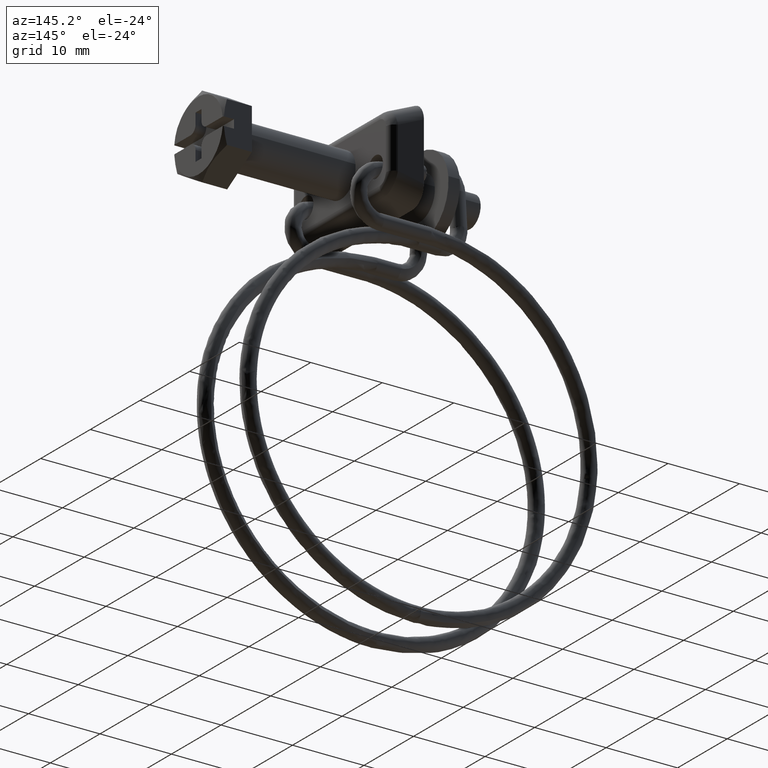
[diagram: clean part render]
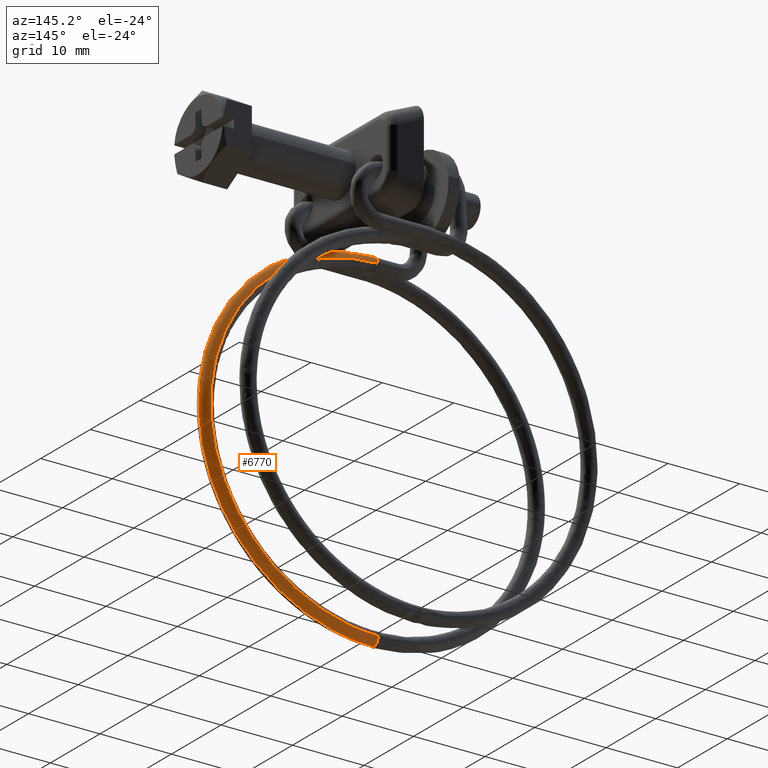
[diagram: same view with one face highlighted and labeled with its STEP entity id]
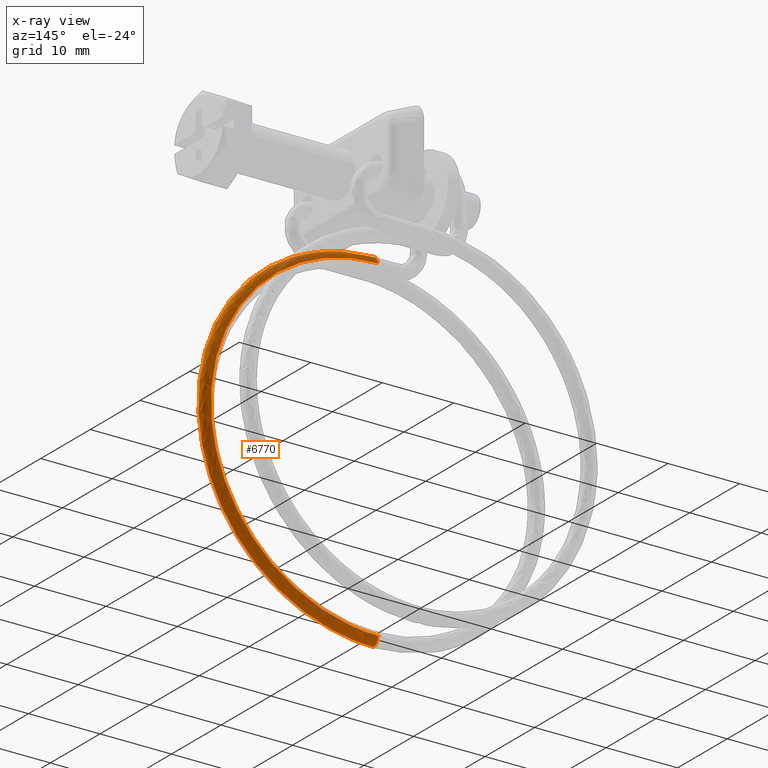
[diagram: x-ray of the same camera — body ghosted, the highlighted face saturated]
A machine part, auxiliary view. The second image highlights one B-rep face of the part: STEP entity #6770.
The next image is the same camera in x-ray: the body ghosted, the highlighted face saturated — about 5% of this face is hidden behind the body in this view.
In plain terms, the highlighted face is a freeform B-spline surface patch.
Its self-contained STEP definition (entity closure, byte-faithful):
#4848=CARTESIAN_POINT('',(-23.350463088142170,-4.287435667147010,-6.850282625755185));
#4849=VERTEX_POINT('',#4848);
#4857=CARTESIAN_POINT('',(-23.354802229962161,-3.302446797782970,-7.919926910837956));
#4858=VERTEX_POINT('',#4857);
#4859=CARTESIAN_POINT('',(-23.354802229962161,-3.302446797782970,-7.919926910837956));
#4860=CARTESIAN_POINT('',(-23.354708021398480,-3.300813736742344,-7.896721693741863));
#4861=CARTESIAN_POINT('',(-23.354613584110659,-3.299991762433371,-7.873459493848626));
#4862=CARTESIAN_POINT('',(-23.353987749752431,-3.299992578671924,-7.719296971577888));
#4863=CARTESIAN_POINT('',(-23.353456649161540,-3.326020721691589,-7.588449764524616));
#4864=CARTESIAN_POINT('',(-23.352475083886819,-3.426208779080070,-7.346580456395813));
#4865=CARTESIAN_POINT('',(-23.352025005407000,-3.500329273726535,-7.235653520564727));
#4866=CARTESIAN_POINT('',(-23.351274095476011,-3.685451278844230,-7.050534704200553));
#4867=CARTESIAN_POINT('',(-23.350973559475840,-3.796379951711530,-6.976415660016761));
#4868=CARTESIAN_POINT('',(-23.350574119310469,-4.034382657736766,-6.877833023538655));
#4869=CARTESIAN_POINT('',(-23.350469220131629,-4.160737249295240,-6.851893240888010));
#4870=CARTESIAN_POINT('',(-23.350463088142170,-4.287435667147010,-6.850282625755185));
#4871=B_SPLINE_CURVE_WITH_KNOTS('',3,(#4859,#4860,#4861,#4862,#4863,#4864,#4865,#4866,#4867,#4868,#4869,#4870),.UNSPECIFIED.,.F.,.U.,(4,2,2,2,2,4),(0.738892255999504,0.750000000000000,0.812500000000000,0.875000000000000,0.937500000000000,0.997999930342307),.UNSPECIFIED.);
#4872=EDGE_CURVE('',#4858,#4849,#4871,.T.);
#6628=CARTESIAN_POINT('',(-23.449999999929819,-3.302485887032724,-54.780271342080880));
#6629=VERTEX_POINT('',#6628);
#6630=CARTESIAN_POINT('',(-23.354802229962157,-3.302446797782970,-7.919926910837956));
#6631=CARTESIAN_POINT('',(0.275356767439989,-3.302446837827358,-8.015937642070787));
#6632=CARTESIAN_POINT('',(-0.021583205459904,-3.302466548304202,-31.644428117575227));
#6633=CARTESIAN_POINT('',(-0.312332065016226,-3.302485847823251,-54.780271337667571));
#6634=CARTESIAN_POINT('',(-23.449999999929823,-3.302485887032724,-54.780271342080887));
#6642=(BOUNDED_CURVE()B_SPLINE_CURVE(2,(#6630,#6631,#6632,#6633,#6634),.UNSPECIFIED.,.F.,.U.)B_SPLINE_CURVE_WITH_KNOTS((3,2,3),(-3.804256949641648,-2.0,-0.221563029389117),.UNSPECIFIED.)CURVE()GEOMETRIC_REPRESENTATION_ITEM()RATIONAL_B_SPLINE_CURVE((0.916624329588821,0.666478302782561,0.977505800795127,0.670929289366412,0.909579780183434))REPRESENTATION_ITEM(''));
#6643=EDGE_CURVE('',#4858,#6629,#6642,.T.);
#6680=CARTESIAN_POINT('',(-23.450016704788052,-4.287434460039799,-55.849920171865463));
#6681=VERTEX_POINT('',#6680);
#6689=CARTESIAN_POINT('',(-23.350463088142167,-4.287435667147010,-6.850282625755185));
#6690=CARTESIAN_POINT('',(1.358482793455375,-4.287435665910700,-6.950669580082859));
#6691=CARTESIAN_POINT('',(1.047986632482016,-4.287435057235282,-31.657867272768598));
#6692=CARTESIAN_POINT('',(0.743964105629792,-4.287434461250333,-55.849936670407061));
#6693=CARTESIAN_POINT('',(-23.450016704788059,-4.287434460039799,-55.849920171865463));
#6701=(BOUNDED_CURVE()B_SPLINE_CURVE(2,(#6689,#6690,#6691,#6692,#6693),.UNSPECIFIED.,.F.,.U.)B_SPLINE_CURVE_WITH_KNOTS((3,2,3),(-3.804257295398728,-2.0,-0.221562197034377),.UNSPECIFIED.)CURVE()GEOMETRIC_REPRESENTATION_ITEM()RATIONAL_B_SPLINE_CURVE((0.937717632689477,0.681815128500485,1.0,0.686368454626954,0.930511105747861))REPRESENTATION_ITEM(''));
#6702=EDGE_CURVE('',#4849,#6681,#6701,.T.);
#6711=CARTESIAN_POINT('',(-26.804133087881038,-4.294807898263949,-7.080669284422161));
#6712=CARTESIAN_POINT('',(1.405937588303184,-4.294807898263948,-3.181907976309245));
#6713=CARTESIAN_POINT('',(1.048079269500098,-4.294807898263948,-31.657869149140808));
#6714=CARTESIAN_POINT('',(0.697335984454505,-4.294807898263949,-59.567663729284838));
#6715=CARTESIAN_POINT('',(-26.931424510503682,-4.294807898263947,-55.601400012626577));
#6716=CARTESIAN_POINT('',(-26.804126755985671,-4.291127565899248,-7.080715099798336));
#6717=CARTESIAN_POINT('',(1.405890665538926,-4.291127565899247,-3.181961151723925));
#6718=CARTESIAN_POINT('',(1.048033022296820,-4.291127565899251,-31.657868567950739));
#6719=CARTESIAN_POINT('',(0.697290399380523,-4.291127565899249,-59.567610460293011));
#6720=CARTESIAN_POINT('',(-26.931417938308975,-4.291127565899247,-55.601354231103571));
#6721=CARTESIAN_POINT('',(-26.802400072180077,-3.287514915912833,-7.093208778775241));
#6722=CARTESIAN_POINT('',(1.393095006040030,-3.287514915912832,-3.196461885232121));
#6723=CARTESIAN_POINT('',(1.035421585709653,-3.287514915912832,-31.657710079622010));
#6724=CARTESIAN_POINT('',(0.684859522936422,-3.287514915912831,-59.553084208653694));
#6725=CARTESIAN_POINT('',(-26.929625725786341,-3.287514915912833,-55.588869783754326));
#6726=CARTESIAN_POINT('',(-26.665507566632957,-3.300080955796185,-8.083714980960105));
#6727=CARTESIAN_POINT('',(0.378647610830900,-3.300080955796183,-4.346088548655130));
#6728=CARTESIAN_POINT('',(0.035579491068003,-3.300080955796184,-31.645145031900341));
#6729=CARTESIAN_POINT('',(-0.300667657587121,-3.300080955796184,-58.401434452818968));
#6730=CARTESIAN_POINT('',(-26.787538065091553,-3.300080955796184,-54.599095470428324));
#6731=CARTESIAN_POINT('',(-26.661589765717810,-3.300440590111870,-8.112062815561281));
#6732=CARTESIAN_POINT('',(0.349614590232398,-3.300440590111868,-4.378990338099685));
#6733=CARTESIAN_POINT('',(0.006964467493521,-3.300440590111870,-31.644785425979872));
#6734=CARTESIAN_POINT('',(-0.328872994864985,-3.300440590111869,-58.368474763394666));
#6735=CARTESIAN_POINT('',(-26.783471581211533,-3.300440590111871,-54.570768582151636));
#6736=CARTESIAN_POINT('',(-26.656581493289647,-3.302997833448982,-8.148300919922686));
#6737=CARTESIAN_POINT('',(0.312500586811052,-3.302997833448982,-4.421049934409018));
#6738=CARTESIAN_POINT('',(-0.029615194593034,-3.302997833448984,-31.644325728191372));
#6739=CARTESIAN_POINT('',(-0.364928939532514,-3.302997833448982,-58.326341151361021));
#6740=CARTESIAN_POINT('',(-26.778273241751005,-3.302997833448983,-54.534557254265529));
#6741=CARTESIAN_POINT('',(-26.655475023482925,-3.303562801226102,-8.156306947730441));
#6742=CARTESIAN_POINT('',(0.304301047991775,-3.303562801226102,-4.430342095342086));
#6743=CARTESIAN_POINT('',(-0.037696682215634,-3.303562801226104,-31.644224167876803));
#6744=CARTESIAN_POINT('',(-0.372894723083557,-3.303562801226103,-58.317032638249572));
#6745=CARTESIAN_POINT('',(-26.777124780731619,-3.303562801226103,-54.526557142142643));
#6753=(BOUNDED_SURFACE()B_SPLINE_SURFACE(2,2,((#6711,#6716,#6721,#6726,#6731,#6736,#6741),(#6712,#6717,#6722,#6727,#6732,#6737,#6742),(#6713,#6718,#6723,#6728,#6733,#6738,#6743),(#6714,#6719,#6724,#6729,#6734,#6739,#6744),(#6715,#6720,#6725,#6730,#6735,#6740,#6745)),.UNSPECIFIED.,.F.,.F.,.U.)B_SPLINE_SURFACE_WITH_KNOTS((3,2,3),(3,1,2,1,3),(0.0,44.965446624394261,89.345484036717906),(0.0,0.008663902554980,1.665518152047381,1.731792258823103,1.750179088412188),.UNSPECIFIED.)GEOMETRIC_REPRESENTATION_ITEM()RATIONAL_B_SPLINE_SURFACE(((0.997174018947989,0.995651434997141,0.702955251948026,0.994128851046294,0.982481918189755,0.968793961588567,0.965821184103987),(0.652247713457811,0.651251797116613,0.459800342802728,0.650255880775416,0.642637666521811,0.633684426439951,0.631739944052632),(1.003063152124083,1.001531576062041,0.707106781186548,1.0,0.988284282420452,0.974515487171444,0.971525152989459),(0.656815011348730,0.655812121205232,0.463020047667301,0.654809231061734,0.647137671042133,0.638121736812484,0.636163638386161),(0.988310691418957,0.986801640873504,0.696707072073824,0.985292590328051,0.973749180606546,0.960182888669954,0.957236534557840)))REPRESENTATION_ITEM('')SURFACE());
#6754=ORIENTED_EDGE('',*,*,#4872,.T.);
#6755=ORIENTED_EDGE('',*,*,#6702,.T.);
#6756=CARTESIAN_POINT('',(-23.449999999929819,-3.302485887032724,-54.780271342080880));
#6757=CARTESIAN_POINT('',(-23.450000182877460,-3.300804588168000,-54.803466287245513));
#6758=CARTESIAN_POINT('',(-23.450000372829798,-3.299953544920048,-54.826725569210502));
#6759=CARTESIAN_POINT('',(-23.450002782163111,-3.299960689547324,-55.111797701207102));
#6760=CARTESIAN_POINT('',(-23.450005819883550,-3.407742793981417,-55.371985962486526));
#6761=CARTESIAN_POINT('',(-23.450011782185559,-3.775038164668334,-55.739265596333787));
#6762=CARTESIAN_POINT('',(-23.450014671963871,-4.029888013675467,-55.846532904379487));
#6763=CARTESIAN_POINT('',(-23.450016704788052,-4.287434460039799,-55.849920171865463));
#6764=B_SPLINE_CURVE_WITH_KNOTS('',3,(#6756,#6757,#6758,#6759,#6760,#6761,#6762,#6763),.UNSPECIFIED.,.F.,.U.,(4,2,2,4),(0.738888458193220,0.750000000000000,0.875000000000000,0.997999572718574),.UNSPECIFIED.);
#6765=EDGE_CURVE('',#6629,#6681,#6764,.T.);
#6766=ORIENTED_EDGE('',*,*,#6765,.F.);
#6767=ORIENTED_EDGE('',*,*,#6643,.F.);
#6768=EDGE_LOOP('',(#6754,#6755,#6766,#6767));
#6769=FACE_OUTER_BOUND('',#6768,.T.);
#6770=ADVANCED_FACE('',(#6769),#6753,.T.);